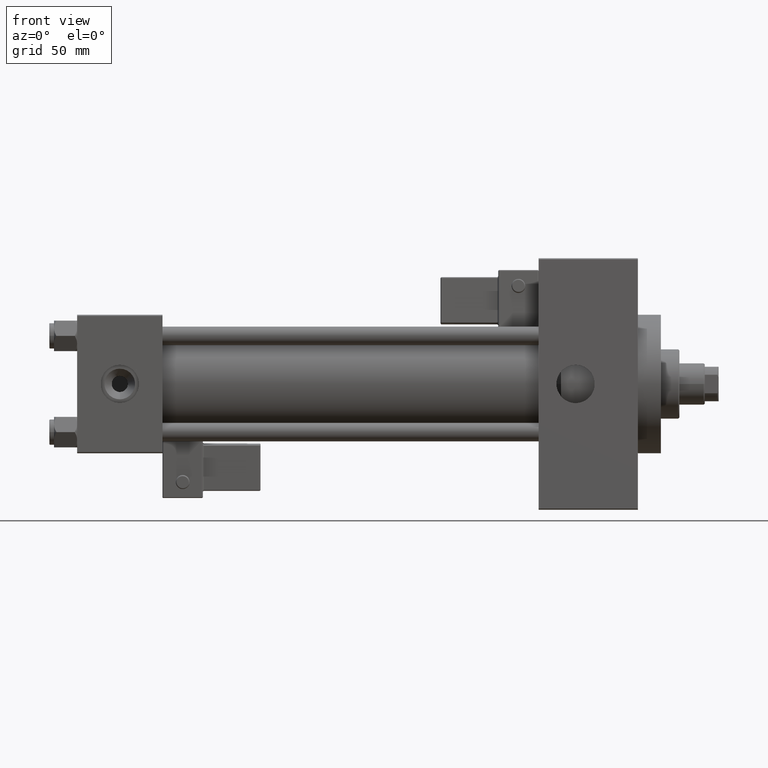
[diagram: clean part render]
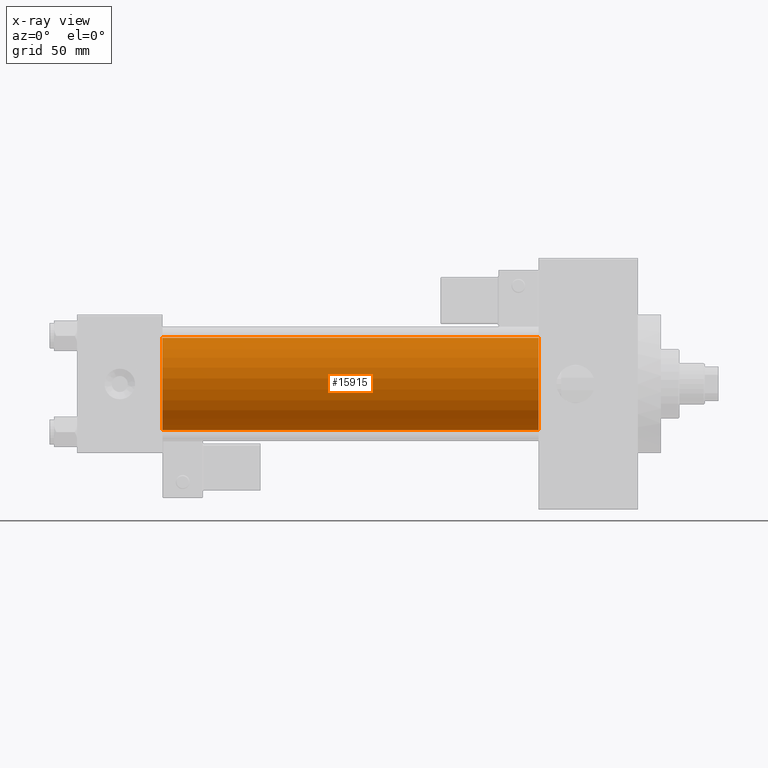
[diagram: x-ray — body ghosted, one internal face saturated and labeled with its STEP entity id]
A machine part, front view, then the same camera in x-ray: the body is ghosted and one INTERNAL B-rep face — a face not visible from any outside direction — is saturated and labeled: STEP entity #15915.
In plain terms, the highlighted cylindrical surface (partial cylindrical patch) has radius 20 mm, axis along (-1, -0, -0).
Its self-contained STEP definition (entity closure, byte-faithful):
#5216 = DIRECTION ( 'NONE',  ( 1.000000000000000000, 0.000000000000000000, 0.000000000000000000 ) ) ;
#5479 = CYLINDRICAL_SURFACE ( 'NONE', #10178, 20.00000000000000000 ) ;
#6231 = DIRECTION ( 'NONE',  ( 0.000000000000000000, 0.000000000000000000, -1.000000000000000000 ) ) ;
#8623 = DIRECTION ( 'NONE',  ( 0.000000000000000000, 0.000000000000000000, -1.000000000000000000 ) ) ;
#9385 = FACE_OUTER_BOUND ( 'NONE', #24255, .T. ) ;
#9538 = CARTESIAN_POINT ( 'NONE',  ( 37.00000000000000000, -1.527916156705042519E-16, -20.00000000000000000 ) ) ;
#9618 = CARTESIAN_POINT ( 'NONE',  ( 200.0000000000000000, -1.527916156705042519E-16, -20.00000000000000000 ) ) ;
#10178 = AXIS2_PLACEMENT_3D ( 'NONE', #48864, #21659, #21918 ) ;
#11865 = CARTESIAN_POINT ( 'NONE',  ( 37.00000000000000000, -2.602085213965210642E-15, 20.00000000000000000 ) ) ;
#12554 = DIRECTION ( 'NONE',  ( -1.000000000000000000, -0.000000000000000000, -0.000000000000000000 ) ) ;
#13950 = VERTEX_POINT ( 'NONE', #9538 ) ;
#15847 = AXIS2_PLACEMENT_3D ( 'NONE', #29759, #41518, #6231 ) ;
#15915 = ADVANCED_FACE ( 'NONE', ( #9385 ), #5479, .F. ) ;
#17457 = LINE ( 'NONE', #9618, #20252 ) ;
#18229 = EDGE_CURVE ( 'NONE', #34264, #13950, #17457, .T. ) ;
#19057 = EDGE_CURVE ( 'NONE', #27826, #13950, #23649, .T. ) ;
#20252 = VECTOR ( 'NONE', #37589, 1000.000000000000000 ) ;
#20652 = LINE ( 'NONE', #37115, #49667 ) ;
#20892 = ORIENTED_EDGE ( 'NONE', *, *, #18229, .T. ) ;
#21659 = DIRECTION ( 'NONE',  ( -1.000000000000000000, -0.000000000000000000, -0.000000000000000000 ) ) ;
#21918 = DIRECTION ( 'NONE',  ( 0.000000000000000000, 0.000000000000000000, 1.000000000000000000 ) ) ;
#21992 = CARTESIAN_POINT ( 'NONE',  ( 200.0000000000000000, -2.602085213965210642E-15, 20.00000000000000000 ) ) ;
#23649 = CIRCLE ( 'NONE', #37823, 20.00000000000000000 ) ;
#24255 = EDGE_LOOP ( 'NONE', ( #38676, #20892, #44768, #25156 ) ) ;
#24517 = VERTEX_POINT ( 'NONE', #21992 ) ;
#25156 = ORIENTED_EDGE ( 'NONE', *, *, #51030, .F. ) ;
#27826 = VERTEX_POINT ( 'NONE', #11865 ) ;
#28235 = CARTESIAN_POINT ( 'NONE',  ( 37.00000000000000000, -2.602085213965210642E-15, 0.000000000000000000 ) ) ;
#29759 = CARTESIAN_POINT ( 'NONE',  ( 200.0000000000000000, -2.602085213965210642E-15, 0.000000000000000000 ) ) ;
#34264 = VERTEX_POINT ( 'NONE', #44838 ) ;
#37115 = CARTESIAN_POINT ( 'NONE',  ( 200.0000000000000000, -2.602085213965210642E-15, 20.00000000000000000 ) ) ;
#37589 = DIRECTION ( 'NONE',  ( -1.000000000000000000, -0.000000000000000000, -0.000000000000000000 ) ) ;
#37823 = AXIS2_PLACEMENT_3D ( 'NONE', #28235, #5216, #8623 ) ;
#38676 = ORIENTED_EDGE ( 'NONE', *, *, #42347, .T. ) ;
#41518 = DIRECTION ( 'NONE',  ( 1.000000000000000000, 0.000000000000000000, 0.000000000000000000 ) ) ;
#42347 = EDGE_CURVE ( 'NONE', #24517, #34264, #43436, .T. ) ;
#43436 = CIRCLE ( 'NONE', #15847, 20.00000000000000000 ) ;
#44768 = ORIENTED_EDGE ( 'NONE', *, *, #19057, .F. ) ;
#44838 = CARTESIAN_POINT ( 'NONE',  ( 200.0000000000000000, -1.527916156705042519E-16, -20.00000000000000000 ) ) ;
#48864 = CARTESIAN_POINT ( 'NONE',  ( 200.0000000000000000, -2.602085213965210642E-15, 0.000000000000000000 ) ) ;
#49667 = VECTOR ( 'NONE', #12554, 1000.000000000000000 ) ;
#51030 = EDGE_CURVE ( 'NONE', #24517, #27826, #20652, .T. ) ;